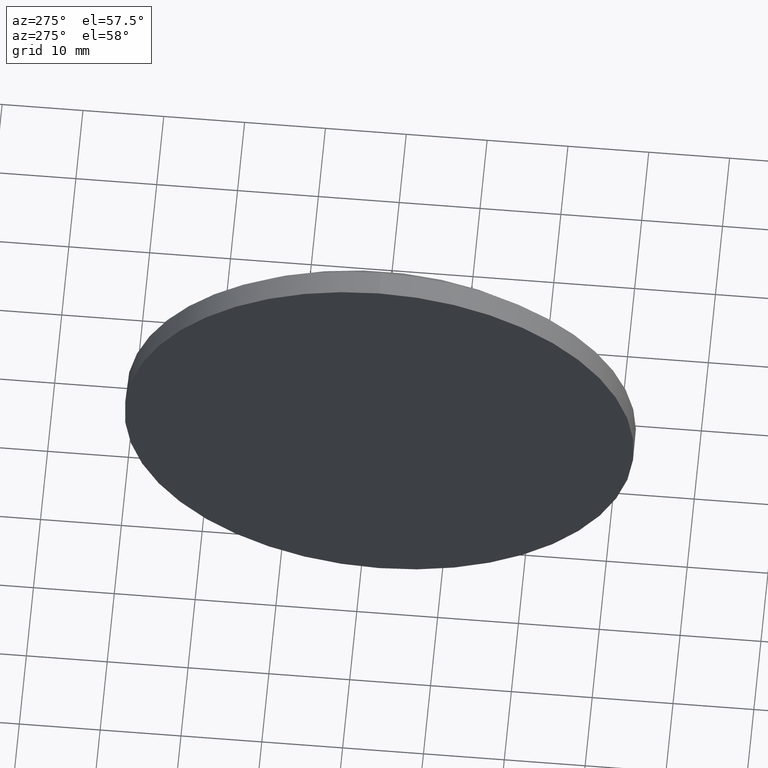
[diagram: clean part render]
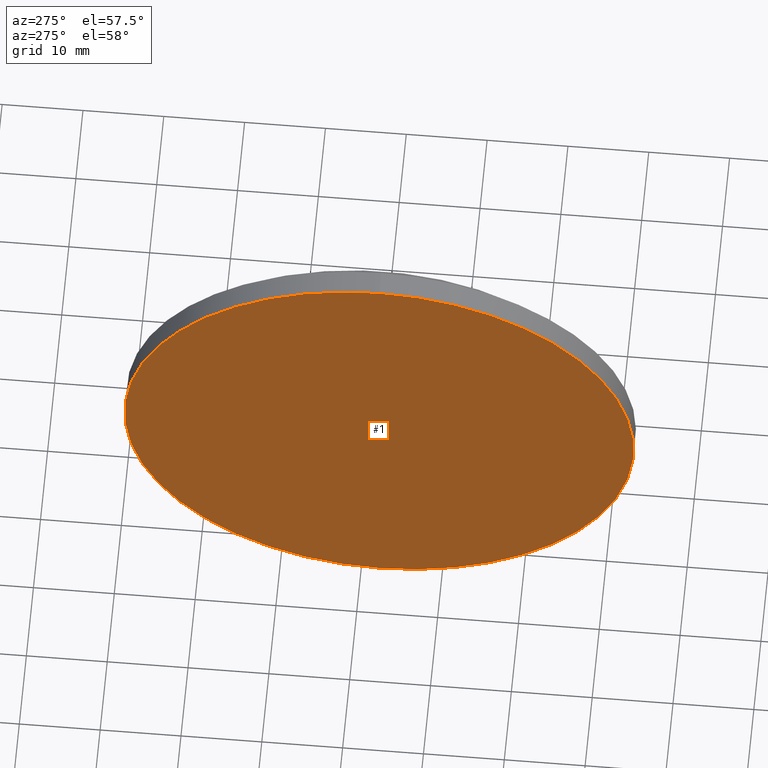
[diagram: same view with one face highlighted and labeled with its STEP entity id]
A machine part, auxiliary view. The second image highlights one B-rep face of the part: STEP entity #1.
In plain terms, the highlighted planar face has unit normal (1, 0, 0).
Its self-contained STEP definition (entity closure, byte-faithful):
#1 = ADVANCED_FACE ( 'NONE', ( #148 ), #74, .F. ) ;
#13 = EDGE_CURVE ( 'NONE', #126, #172, #120, .T. ) ;
#14 = CARTESIAN_POINT ( 'NONE',  ( 385.7011333870950700, 17.73166339868760100, 0.0000000000000000000 ) ) ;
#19 = DIRECTION ( 'NONE',  ( -1.000000000000000000, -0.0000000000000000000, -0.0000000000000000000 ) ) ;
#33 = CARTESIAN_POINT ( 'NONE',  ( 385.7011333870950700, 17.73166339868760100, 31.50000000000000000 ) ) ;
#42 = AXIS2_PLACEMENT_3D ( 'NONE', #14, #60, #134 ) ;
#46 = DIRECTION ( 'NONE',  ( 0.0000000000000000000, 0.0000000000000000000, -1.000000000000000000 ) ) ;
#50 = CIRCLE ( 'NONE', #62, 31.50000000000000000 ) ;
#57 = ORIENTED_EDGE ( 'NONE', *, *, #13, .T. ) ;
#60 = DIRECTION ( 'NONE',  ( -1.000000000000000000, -0.0000000000000000000, -0.0000000000000000000 ) ) ;
#62 = AXIS2_PLACEMENT_3D ( 'NONE', #64, #19, #165 ) ;
#64 = CARTESIAN_POINT ( 'NONE',  ( 385.7011333870950700, 17.73166339868760100, 0.0000000000000000000 ) ) ;
#68 = AXIS2_PLACEMENT_3D ( 'NONE', #121, #135, #46 ) ;
#74 = PLANE ( 'NONE',  #68 ) ;
#78 = ORIENTED_EDGE ( 'NONE', *, *, #157, .T. ) ;
#120 = CIRCLE ( 'NONE', #42, 31.50000000000000000 ) ;
#121 = CARTESIAN_POINT ( 'NONE',  ( 385.7011333870950700, 17.73166339868760100, 0.0000000000000000000 ) ) ;
#126 = VERTEX_POINT ( 'NONE', #33 ) ;
#134 = DIRECTION ( 'NONE',  ( 0.0000000000000000000, 0.0000000000000000000, 1.000000000000000000 ) ) ;
#135 = DIRECTION ( 'NONE',  ( 1.000000000000000000, 0.0000000000000000000, 0.0000000000000000000 ) ) ;
#148 = FACE_OUTER_BOUND ( 'NONE', #179, .T. ) ;
#157 = EDGE_CURVE ( 'NONE', #172, #126, #50, .T. ) ;
#165 = DIRECTION ( 'NONE',  ( 0.0000000000000000000, 0.0000000000000000000, 1.000000000000000000 ) ) ;
#168 = CARTESIAN_POINT ( 'NONE',  ( 385.7011333870950700, 17.73166339868760500, -31.50000000000000000 ) ) ;
#172 = VERTEX_POINT ( 'NONE', #168 ) ;
#179 = EDGE_LOOP ( 'NONE', ( #57, #78 ) ) ;